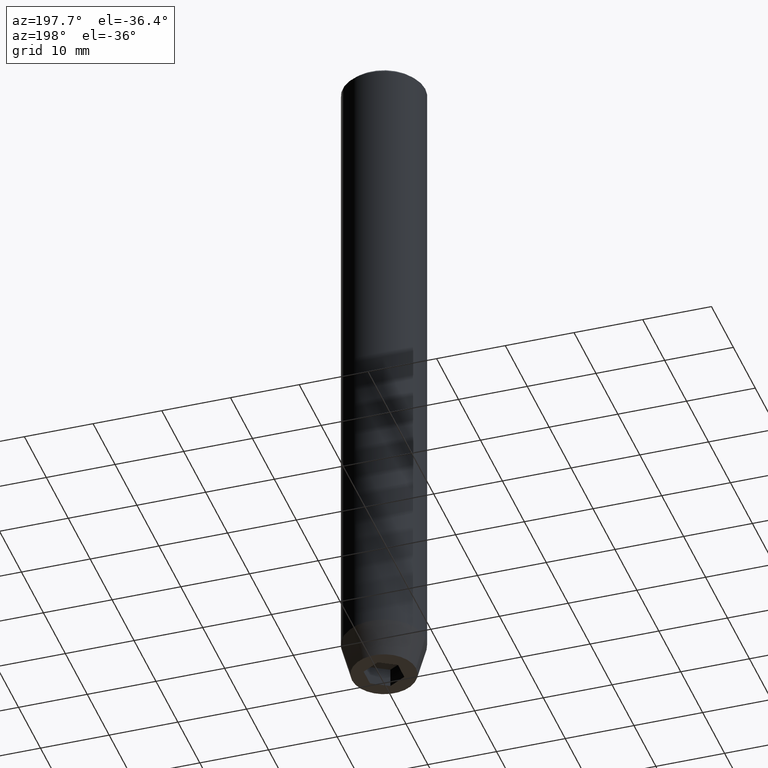
[diagram: clean part render]
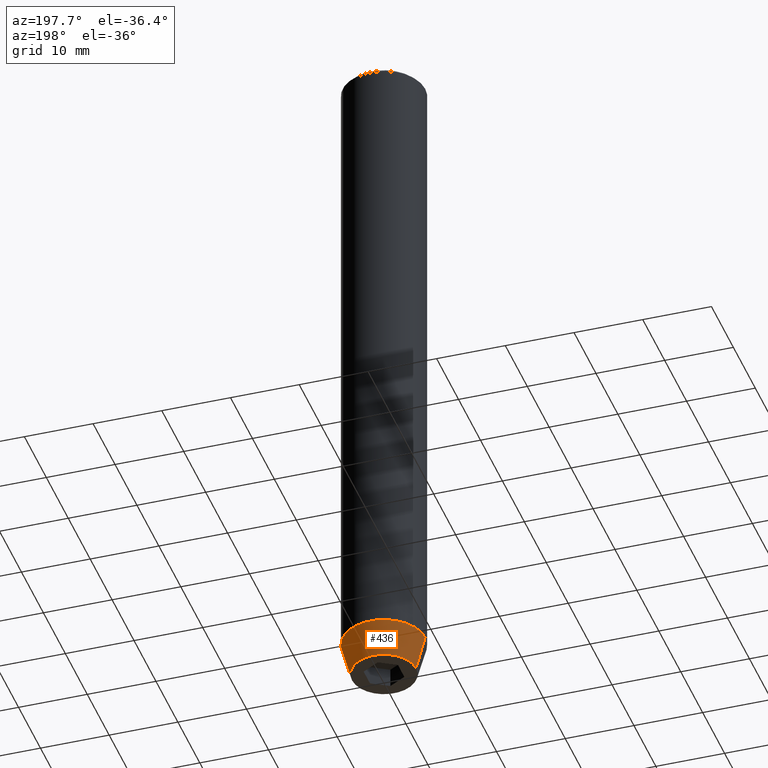
[diagram: same view with one face highlighted and labeled with its STEP entity id]
A machine part, auxiliary view. The second image highlights one B-rep face of the part: STEP entity #436.
In plain terms, the highlighted conical surface has half-angle 15 deg.
Its self-contained STEP definition (entity closure, byte-faithful):
#24 = CIRCLE ( 'NONE', #38, 6.000000000000000000 ) ;
#38 = AXIS2_PLACEMENT_3D ( 'NONE', #124, #74, #428 ) ;
#49 = LINE ( 'NONE', #560, #364 ) ;
#50 = EDGE_CURVE ( 'NONE', #415, #471, #49, .T. ) ;
#65 = EDGE_CURVE ( 'NONE', #555, #471, #24, .T. ) ;
#72 = CARTESIAN_POINT ( 'NONE',  ( 0.000000000000000000, 0.000000000000000000, -100.0000000000000000 ) ) ;
#74 = DIRECTION ( 'NONE',  ( -0.000000000000000000, -0.000000000000000000, 1.000000000000000000 ) ) ;
#91 = DIRECTION ( 'NONE',  ( -0.2588190451025214611, 3.169619151431774186E-17, 0.9659258262890679791 ) ) ;
#113 = LINE ( 'NONE', #437, #391 ) ;
#124 = CARTESIAN_POINT ( 'NONE',  ( 0.000000000000000000, 0.000000000000000000, -95.00000000000000000 ) ) ;
#128 = EDGE_CURVE ( 'NONE', #383, #555, #113, .T. ) ;
#146 = ORIENTED_EDGE ( 'NONE', *, *, #65, .F. ) ;
#147 = CARTESIAN_POINT ( 'NONE',  ( -4.660254037844381081, 6.527522992771884330E-16, -100.0000000000000000 ) ) ;
#164 = CARTESIAN_POINT ( 'NONE',  ( 6.000000000000000000, 0.000000000000000000, -95.00000000000000000 ) ) ;
#177 = CONICAL_SURFACE ( 'NONE', #429, 6.000000000000000000, 0.2617993877991502405 ) ;
#199 = ORIENTED_EDGE ( 'NONE', *, *, #128, .F. ) ;
#214 = DIRECTION ( 'NONE',  ( -0.000000000000000000, -0.000000000000000000, 1.000000000000000000 ) ) ;
#234 = DIRECTION ( 'NONE',  ( -0.000000000000000000, -0.000000000000000000, 1.000000000000000000 ) ) ;
#235 = CARTESIAN_POINT ( 'NONE',  ( 0.000000000000000000, 0.000000000000000000, -95.00000000000000000 ) ) ;
#249 = DIRECTION ( 'NONE',  ( 0.2588190451025214611, 0.000000000000000000, 0.9659258262890679791 ) ) ;
#277 = FACE_OUTER_BOUND ( 'NONE', #497, .T. ) ;
#281 = CARTESIAN_POINT ( 'NONE',  ( -6.000000000000000000, 7.347880794884119736E-16, -95.00000000000000000 ) ) ;
#336 = ORIENTED_EDGE ( 'NONE', *, *, #583, .T. ) ;
#364 = VECTOR ( 'NONE', #91, 1000.000000000000114 ) ;
#383 = VERTEX_POINT ( 'NONE', #510 ) ;
#391 = VECTOR ( 'NONE', #249, 1000.000000000000114 ) ;
#415 = VERTEX_POINT ( 'NONE', #147 ) ;
#423 = DIRECTION ( 'NONE',  ( 1.000000000000000000, 0.000000000000000000, 0.000000000000000000 ) ) ;
#428 = DIRECTION ( 'NONE',  ( 1.000000000000000000, 0.000000000000000000, 0.000000000000000000 ) ) ;
#429 = AXIS2_PLACEMENT_3D ( 'NONE', #235, #234, #423 ) ;
#436 = ADVANCED_FACE ( 'NONE', ( #277 ), #177, .T. ) ;
#437 = CARTESIAN_POINT ( 'NONE',  ( 6.000000000000000000, 0.000000000000000000, -95.00000000000000000 ) ) ;
#471 = VERTEX_POINT ( 'NONE', #281 ) ;
#497 = EDGE_LOOP ( 'NONE', ( #336, #563, #146, #199 ) ) ;
#510 = CARTESIAN_POINT ( 'NONE',  ( 4.660254037844381081, 0.000000000000000000, -100.0000000000000000 ) ) ;
#551 = AXIS2_PLACEMENT_3D ( 'NONE', #72, #214, #556 ) ;
#555 = VERTEX_POINT ( 'NONE', #164 ) ;
#556 = DIRECTION ( 'NONE',  ( 1.000000000000000000, 0.000000000000000000, 0.000000000000000000 ) ) ;
#560 = CARTESIAN_POINT ( 'NONE',  ( -6.000000000000000000, 7.347880794884119736E-16, -95.00000000000000000 ) ) ;
#561 = CIRCLE ( 'NONE', #551, 4.660254037844381081 ) ;
#563 = ORIENTED_EDGE ( 'NONE', *, *, #50, .T. ) ;
#583 = EDGE_CURVE ( 'NONE', #383, #415, #561, .T. ) ;